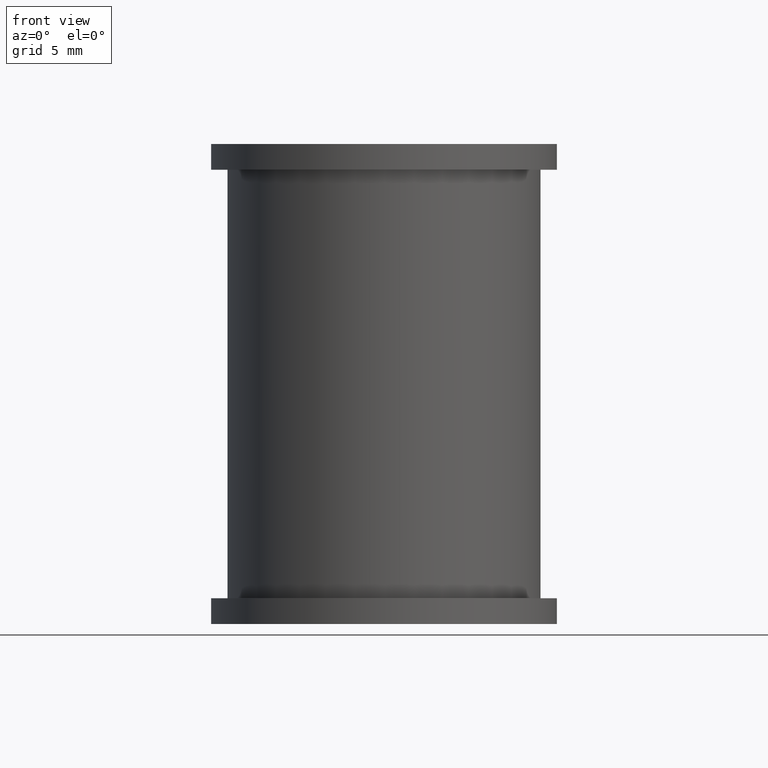
[diagram: clean part render]
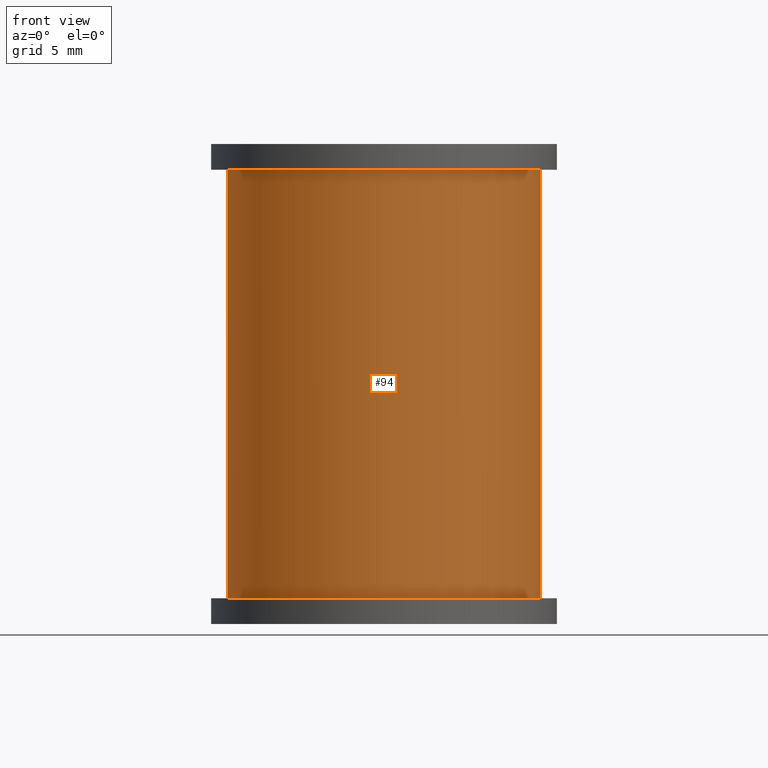
[diagram: same view with one face highlighted and labeled with its STEP entity id]
A machine part, front view. The second image highlights one B-rep face of the part: STEP entity #94.
In plain terms, the highlighted cylindrical surface (partial cylindrical patch) has radius 9.14 mm, axis along (0, 0, -1).
Its self-contained STEP definition (entity closure, byte-faithful):
#94 = ADVANCED_FACE( '', ( #140 ), #141, .T. );
#140 = FACE_OUTER_BOUND( '', #192, .T. );
#141 = CYLINDRICAL_SURFACE( '', #193, 9.14000000000000 );
#192 = EDGE_LOOP( '', ( #371, #372, #373, #374 ) );
#193 = AXIS2_PLACEMENT_3D( '', #375, #376, #377 );
#371 = ORIENTED_EDGE( '', *, *, #456, .F. );
#372 = ORIENTED_EDGE( '', *, *, #495, .T. );
#373 = ORIENTED_EDGE( '', *, *, #432, .T. );
#374 = ORIENTED_EDGE( '', *, *, #496, .T. );
#375 = CARTESIAN_POINT( '', ( 4.33680868994202E-016, 8.67361737988404E-016, -25.0000000000000 ) );
#376 = DIRECTION( '', ( 0.000000000000000, 0.000000000000000, -1.00000000000000 ) );
#377 = DIRECTION( '', ( -0.440806045340050, -0.897602378780084, 0.000000000000000 ) );
#432 = EDGE_CURVE( '', #508, #509, #510, .T. );
#456 = EDGE_CURVE( '', #551, #553, #554, .T. );
#495 = EDGE_CURVE( '', #551, #508, #615, .F. );
#496 = EDGE_CURVE( '', #509, #553, #616, .T. );
#508 = VERTEX_POINT( '', #632 );
#509 = VERTEX_POINT( '', #633 );
#510 = CIRCLE( '', #634, 9.14000000000000 );
#551 = VERTEX_POINT( '', #692 );
#553 = VERTEX_POINT( '', #694 );
#554 = CIRCLE( '', #695, 9.14000000000000 );
#615 = LINE( '', #779, #780 );
#616 = LINE( '', #781, #782 );
#632 = CARTESIAN_POINT( '', ( -5.64662273476111, 7.18715880520800, -25.0000000000000 ) );
#633 = CARTESIAN_POINT( '', ( 5.64662273476112, 7.18715880520799, -25.0000000000000 ) );
#634 = AXIS2_PLACEMENT_3D( '', #792, #793, #794 );
#692 = CARTESIAN_POINT( '', ( -5.64662273476111, 7.18715880520800, 0.000000000000000 ) );
#694 = CARTESIAN_POINT( '', ( 5.64662273476112, 7.18715880520799, 0.000000000000000 ) );
#695 = AXIS2_PLACEMENT_3D( '', #830, #831, #832 );
#779 = CARTESIAN_POINT( '', ( -5.64662273476111, 7.18715880520800, -25.0000000000000 ) );
#780 = VECTOR( '', #901, 1000.00000000000 );
#781 = CARTESIAN_POINT( '', ( 5.64662273476113, 7.18715880520799, -25.0000000000000 ) );
#782 = VECTOR( '', #902, 1000.00000000000 );
#792 = CARTESIAN_POINT( '', ( 4.33680868994202E-016, 8.67361737988404E-016, -25.0000000000000 ) );
#793 = DIRECTION( '', ( 0.000000000000000, 0.000000000000000, 1.00000000000000 ) );
#794 = DIRECTION( '', ( 1.00000000000000, 5.55111512312578E-017, 0.000000000000000 ) );
#830 = CARTESIAN_POINT( '', ( 4.33680868994202E-016, 8.67361737988404E-016, 0.000000000000000 ) );
#831 = DIRECTION( '', ( 0.000000000000000, 0.000000000000000, 1.00000000000000 ) );
#832 = DIRECTION( '', ( 1.00000000000000, 5.55111512312578E-017, 0.000000000000000 ) );
#901 = DIRECTION( '', ( 0.000000000000000, 0.000000000000000, 1.00000000000000 ) );
#902 = DIRECTION( '', ( 0.000000000000000, 0.000000000000000, 1.00000000000000 ) );